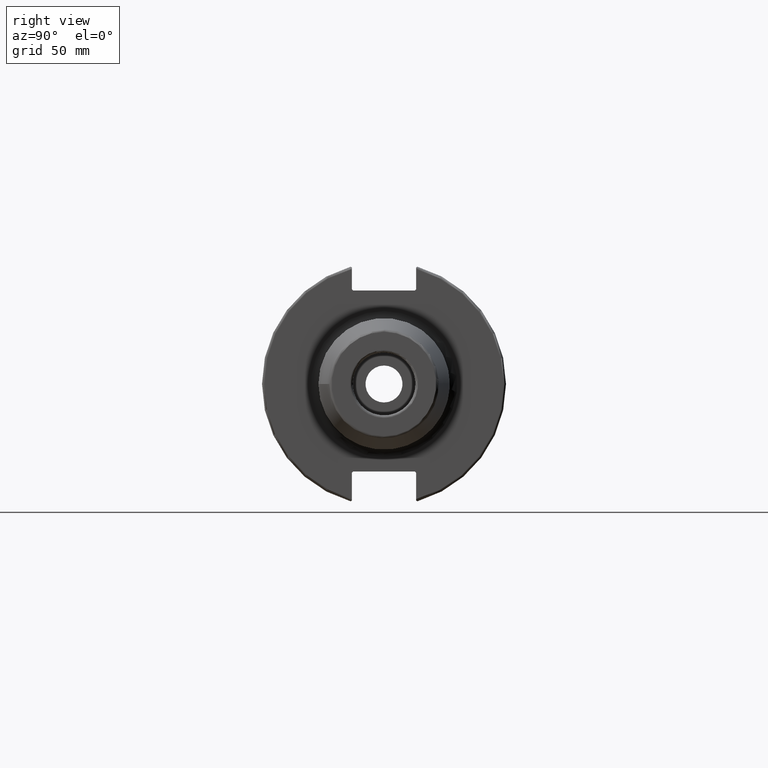
[diagram: clean part render]
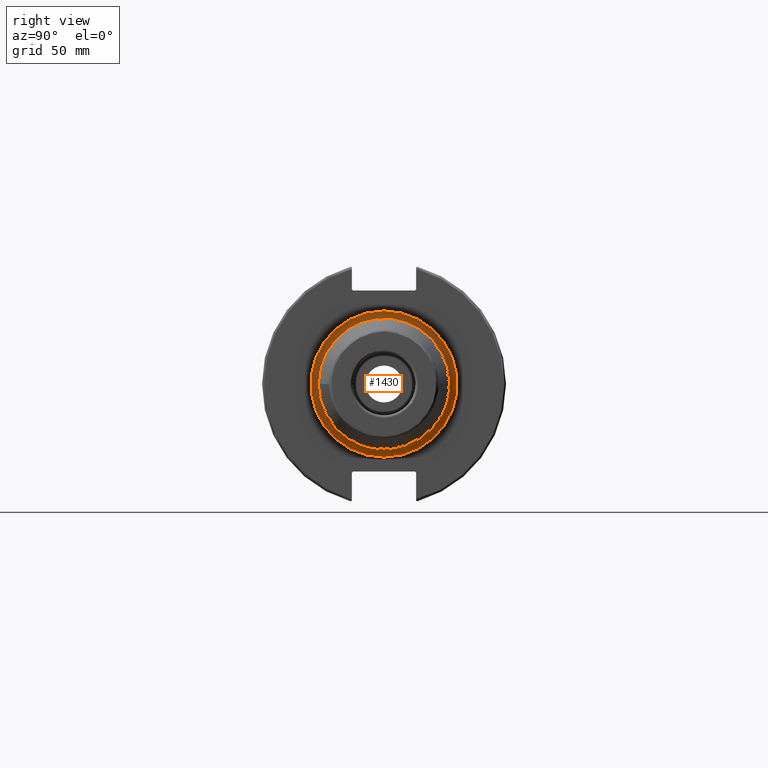
[diagram: same view with one face highlighted and labeled with its STEP entity id]
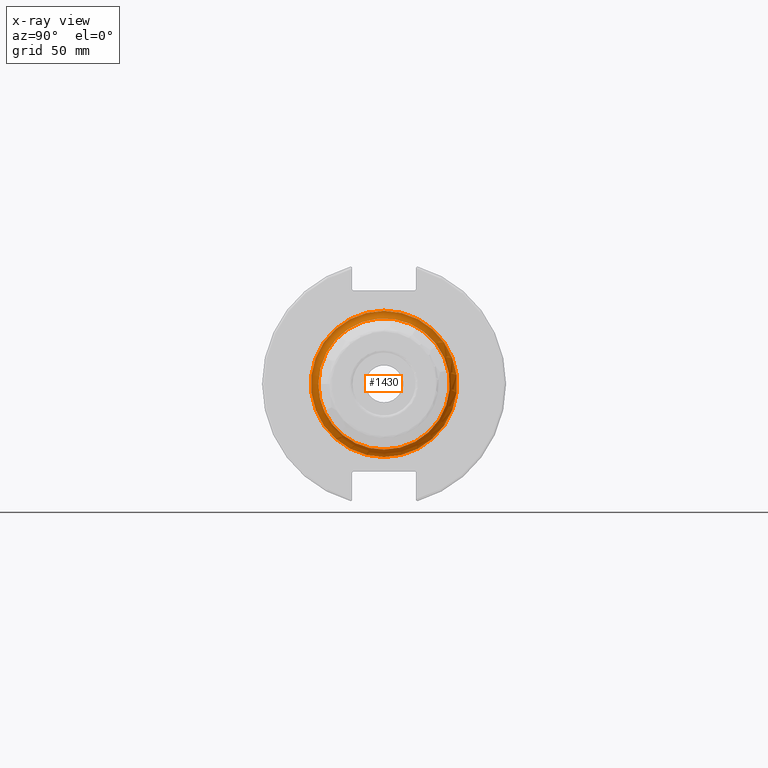
[diagram: x-ray of the same camera — body ghosted, the highlighted face saturated]
A machine part, right view. The second image highlights one B-rep face of the part: STEP entity #1430.
The next image is the same camera in x-ray: the body ghosted, the highlighted face saturated — about 2% of this face is hidden behind the body in this view.
In plain terms, the highlighted toroidal blend (fillet) surface has major radius 29.5 mm and minor (blend) radius 3 mm.
Its self-contained STEP definition (entity closure, byte-faithful):
#351=FACE_OUTER_BOUND('',#436,.T.);
#436=EDGE_LOOP('',(#998,#999,#1000,#1001,#1002));
#544=CIRCLE('',#1548,26.5);
#545=CIRCLE('',#1549,3.);
#546=CIRCLE('',#1550,29.5);
#547=CIRCLE('',#1551,26.5);
#616=VERTEX_POINT('',#2131);
#617=VERTEX_POINT('',#2132);
#618=VERTEX_POINT('',#2134);
#768=EDGE_CURVE('',#616,#617,#544,.T.);
#769=EDGE_CURVE('',#617,#618,#545,.T.);
#770=EDGE_CURVE('',#618,#618,#546,.T.);
#771=EDGE_CURVE('',#617,#616,#547,.T.);
#998=ORIENTED_EDGE('',*,*,#768,.T.);
#999=ORIENTED_EDGE('',*,*,#769,.T.);
#1000=ORIENTED_EDGE('',*,*,#770,.T.);
#1001=ORIENTED_EDGE('',*,*,#769,.F.);
#1002=ORIENTED_EDGE('',*,*,#771,.T.);
#1418=TOROIDAL_SURFACE('',#1547,29.5,3.);
#1430=ADVANCED_FACE('',(#351),#1418,.F.);
#1547=AXIS2_PLACEMENT_3D('',#2130,#1726,#1727);
#1548=AXIS2_PLACEMENT_3D('',#2133,#1728,#1729);
#1549=AXIS2_PLACEMENT_3D('',#2135,#1730,#1731);
#1550=AXIS2_PLACEMENT_3D('',#2136,#1732,#1733);
#1551=AXIS2_PLACEMENT_3D('',#2137,#1734,#1735);
#1726=DIRECTION('center_axis',(-1.,0.,0.));
#1727=DIRECTION('ref_axis',(0.,0.,1.));
#1728=DIRECTION('center_axis',(-1.,0.,0.));
#1729=DIRECTION('ref_axis',(0.,-1.,-1.22464679914735E-16));
#1730=DIRECTION('center_axis',(0.,-1.,1.22464679914735E-16));
#1731=DIRECTION('ref_axis',(0.,-1.22464679914735E-16,-1.));
#1732=DIRECTION('center_axis',(1.,0.,0.));
#1733=DIRECTION('ref_axis',(0.,-1.,-1.22464679914735E-16));
#1734=DIRECTION('center_axis',(-1.,0.,0.));
#1735=DIRECTION('ref_axis',(0.,-1.,-1.22464679914735E-16));
#2130=CARTESIAN_POINT('Origin',(22.05,0.,0.));
#2131=CARTESIAN_POINT('',(22.05,-26.5,-3.24531401774049E-15));
#2132=CARTESIAN_POINT('',(22.05,-3.24531401774049E-15,-26.5));
#2133=CARTESIAN_POINT('Origin',(22.05,0.,0.));
#2134=CARTESIAN_POINT('',(19.05,-3.61270805748469E-15,-29.5));
#2135=CARTESIAN_POINT('Origin',(22.05,-3.61270805748469E-15,-29.5));
#2136=CARTESIAN_POINT('Origin',(19.05,0.,0.));
#2137=CARTESIAN_POINT('Origin',(22.05,0.,0.));